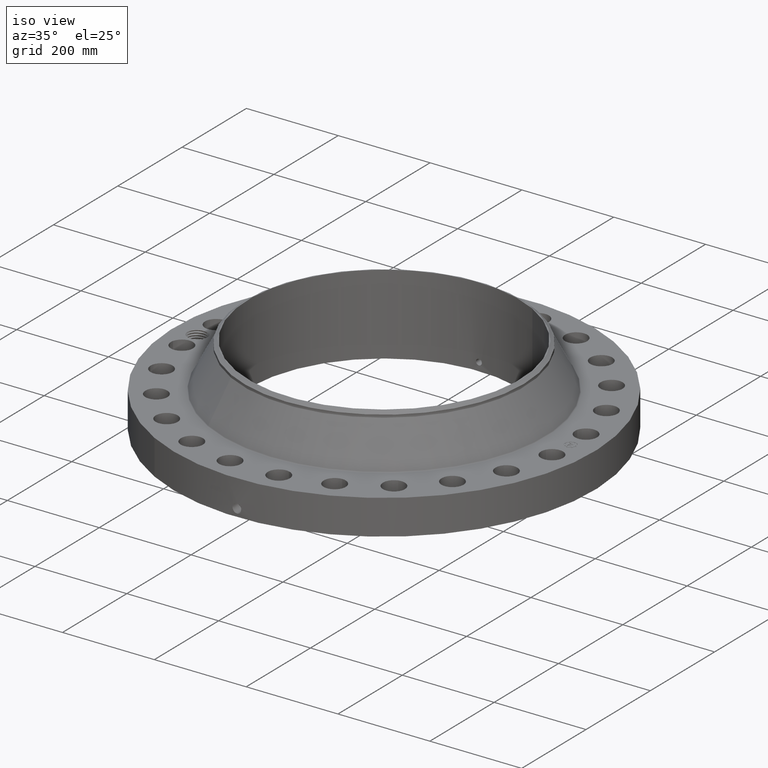
[diagram: clean part render]
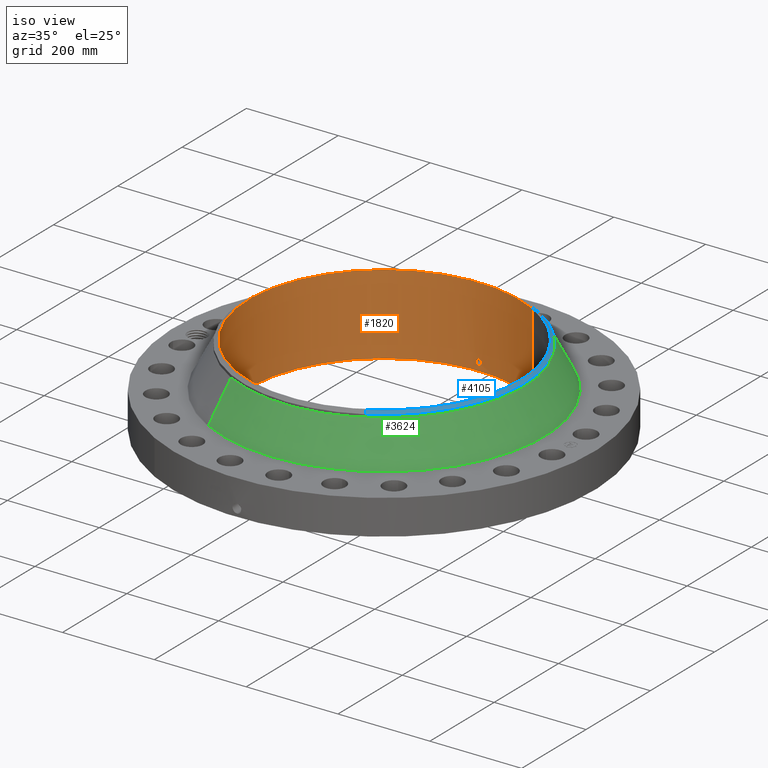
[diagram: same view with three faces highlighted in distinct colors, each labeled with its STEP entity id]
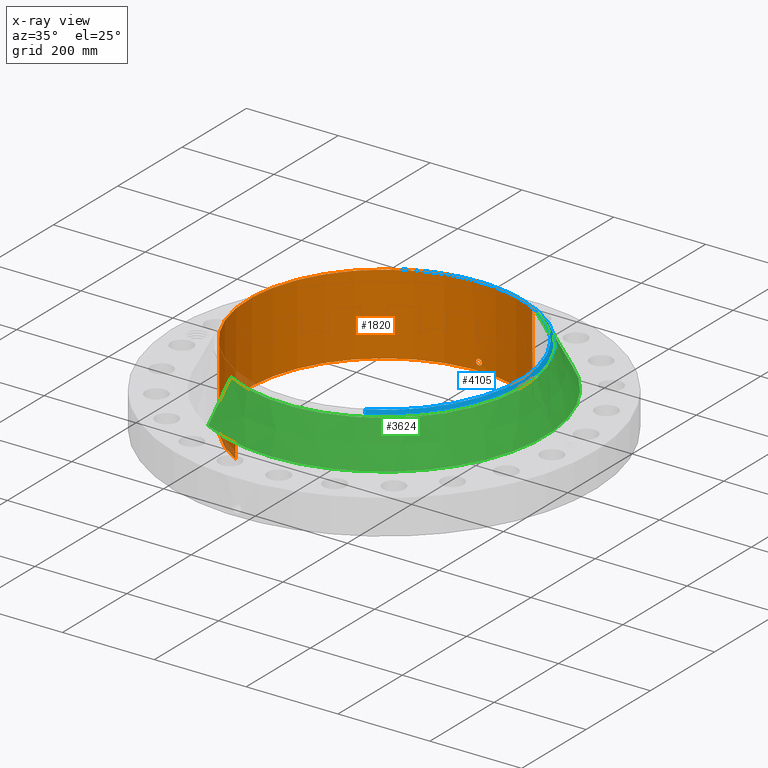
[diagram: x-ray of the same camera — body ghosted, the three highlighted faces saturated]
A machine part, iso view with three faces highlighted in distinct colors.
The next image is the same camera in x-ray (body ghosted, the three faces saturated) — at least one of them is partly hidden behind the body in this view.
Their STEP definitions:

[orange] entity #1820 — the highlighted cylindrical surface (partial cylindrical patch) has radius 295.275 mm, axis along (0, 0, -1).
#257=AXIS2_PLACEMENT_3D('Circle Axis2P3D',#255,#256,$) ;
#1697=AXIS2_PLACEMENT_3D('Cylinder Axis2P3D',#1694,#1695,#1696) ;
#1769=AXIS2_PLACEMENT_3D('Circle Axis2P3D',#1767,#1768,$) ;
#250=CARTESIAN_POINT('Vertex',(5.5733218863,10.201897282,0.250000000001)) ;
#252=CARTESIAN_POINT('Vertex',(-5.5733218863,-10.201897282,0.250000000001)) ;
#255=CARTESIAN_POINT('Axis2P3D Location',(0.,0.,0.250000000001)) ;
#1694=CARTESIAN_POINT('Axis2P3D Location',(0.,0.,3.69000000001)) ;
#1703=CARTESIAN_POINT('Vertex',(5.5733218863,10.201897282,7.13000000003)) ;
#1705=CARTESIAN_POINT('Vertex',(-5.5733218863,-10.201897282,7.13000000003)) ;
#1708=CARTESIAN_POINT('Line Origine',(5.5733218863,10.201897282,3.69000000001)) ;
#1713=CARTESIAN_POINT('Line Origine',(-5.5733218863,-10.201897282,3.69000000001)) ;
#1767=CARTESIAN_POINT('Axis2P3D Location',(0.,0.,7.13000000003)) ;
#1779=CARTESIAN_POINT('Control Point',(0.219395640473,11.6229295169,1.05985638466)) ;
#1780=CARTESIAN_POINT('Control Point',(0.194442690196,11.6234005314,1.10553245376)) ;
#1781=CARTESIAN_POINT('Control Point',(0.157603809253,11.6240289186,1.14471350057)) ;
#1782=CARTESIAN_POINT('Control Point',(0.111104237784,11.624640089,1.17324467076)) ;
#1783=CARTESIAN_POINT('Control Point',(0.0336681245459,11.6251263373,1.19588334378)) ;
#1784=CARTESIAN_POINT('Control Point',(-0.0446771705862,11.6249582664,1.18805553725)) ;
#1785=CARTESIAN_POINT('Control Point',(-0.0703086500572,11.624827795,1.18204182907)) ;
#1786=CARTESIAN_POINT('Control Point',(-0.143966920713,11.6242512714,1.15420586263)) ;
#1787=CARTESIAN_POINT('Control Point',(-0.203255914342,11.6233103135,1.09948409915)) ;
#1788=CARTESIAN_POINT('Control Point',(-0.232218698508,11.6226932693,1.05323980758)) ;
#1789=CARTESIAN_POINT('Control Point',(-0.255842048639,11.6221861779,0.975095075018)) ;
#1790=CARTESIAN_POINT('Control Point',(-0.248280051574,11.622348369,0.895735509097)) ;
#1791=CARTESIAN_POINT('Control Point',(-0.242046339845,11.6224840063,0.869177390038)) ;
#1792=CARTESIAN_POINT('Control Point',(-0.232313797056,11.6226856724,0.843790142365)) ;
#1793=CARTESIAN_POINT('Control Point',(-0.219395640473,11.6229295169,0.820143615352)) ;
#1794=CARTESIAN_POINT('Vertex',(0.219395640473,11.6229295169,1.05985638466)) ;
#1796=CARTESIAN_POINT('Vertex',(-0.219395640473,11.6229295169,0.820143615352)) ;
#1800=CARTESIAN_POINT('Control Point',(-0.219395640473,11.6229295169,0.820143615352)) ;
#1801=CARTESIAN_POINT('Control Point',(-0.194442690218,11.6234005314,0.774467546289)) ;
#1802=CARTESIAN_POINT('Control Point',(-0.157603809317,11.6240289186,0.735286499509)) ;
#1803=CARTESIAN_POINT('Control Point',(-0.111104237696,11.624640089,0.706755329219)) ;
#1804=CARTESIAN_POINT('Control Point',(-0.0336681244832,11.6251263373,0.684116656223)) ;
#1805=CARTESIAN_POINT('Control Point',(0.0446771706234,11.6249582664,0.69194446276)) ;
#1806=CARTESIAN_POINT('Control Point',(0.0703086500175,11.624827795,0.697958170925)) ;
#1807=CARTESIAN_POINT('Control Point',(0.143966920665,11.6242512714,0.725794137349)) ;
#1808=CARTESIAN_POINT('Control Point',(0.203255914293,11.6233103135,0.780515900807)) ;
#1809=CARTESIAN_POINT('Control Point',(0.232218698527,11.6226932693,0.826760192493)) ;
#1810=CARTESIAN_POINT('Control Point',(0.25584204862,11.6221861779,0.904904924969)) ;
#1811=CARTESIAN_POINT('Control Point',(0.248280051584,11.622348369,0.984264490806)) ;
#1812=CARTESIAN_POINT('Control Point',(0.242046339809,11.6224840063,1.01082261007)) ;
#1813=CARTESIAN_POINT('Control Point',(0.232313797032,11.6226856724,1.03620985769)) ;
#1814=CARTESIAN_POINT('Control Point',(0.219395640473,11.6229295169,1.05985638466)) ;
#256=DIRECTION('Axis2P3D Direction',(0.,0.,-0.0393700787402)) ;
#1695=DIRECTION('Axis2P3D Direction',(0.,0.,-0.0393700787402)) ;
#1696=DIRECTION('Axis2P3D XDirection',(-0.0188750212049,-0.0345504945626,0.)) ;
#1709=DIRECTION('Vector Direction',(0.,0.,-0.0393700787402)) ;
#1714=DIRECTION('Vector Direction',(0.,0.,-0.0393700787402)) ;
#1768=DIRECTION('Axis2P3D Direction',(0.,0.,-0.0393700787402)) ;
#1710=VECTOR('Line Direction',#1709,0.0393700787402) ;
#1715=VECTOR('Line Direction',#1714,0.0393700787402) ;
#1773=ORIENTED_EDGE('',*,*,#1771,.F.) ;
#1774=ORIENTED_EDGE('',*,*,#1717,.T.) ;
#1775=ORIENTED_EDGE('',*,*,#259,.T.) ;
#1776=ORIENTED_EDGE('',*,*,#1712,.F.) ;
#1817=ORIENTED_EDGE('',*,*,#1798,.F.) ;
#1818=ORIENTED_EDGE('',*,*,#1815,.F.) ;
#1819=FACE_BOUND('',#1816,.T.) ;
#1820=ADVANCED_FACE('PartBody',(#1777,#1819),#1698,.F.) ;
#1778=B_SPLINE_CURVE_WITH_KNOTS('',5,(#1779,#1780,#1781,#1782,#1783,#1784,#1785,#1786,#1787,#1788,#1789,#1790,#1791,#1792,#1793),.UNSPECIFIED.,.F.,.U.,(6,3,3,3,6),(0.,9.34839895315,14.0230211676,23.3730687647,28.2127402318),.UNSPECIFIED.) ;
#1799=B_SPLINE_CURVE_WITH_KNOTS('',5,(#1800,#1801,#1802,#1803,#1804,#1805,#1806,#1807,#1808,#1809,#1810,#1811,#1812,#1813,#1814),.UNSPECIFIED.,.F.,.U.,(6,3,3,3,6),(0.,9.34839894496,14.023021163,23.3730687543,28.2127402123),.UNSPECIFIED.) ;
#258=CIRCLE('generated circle',#257,11.625) ;
#1770=CIRCLE('generated circle',#1769,11.625) ;
#1698=CYLINDRICAL_SURFACE('generated cylinder',#1697,11.625) ;
#259=EDGE_CURVE('',#253,#251,#258,.T.) ;
#1712=EDGE_CURVE('',#1704,#251,#1711,.T.) ;
#1717=EDGE_CURVE('',#1706,#253,#1716,.T.) ;
#1771=EDGE_CURVE('',#1706,#1704,#1770,.T.) ;
#1798=EDGE_CURVE('',#1795,#1797,#1778,.T.) ;
#1815=EDGE_CURVE('',#1797,#1795,#1799,.T.) ;
#1772=EDGE_LOOP('',(#1773,#1774,#1775,#1776)) ;
#1816=EDGE_LOOP('',(#1817,#1818)) ;
#1777=FACE_OUTER_BOUND('',#1772,.T.) ;
#1711=LINE('Line',#1708,#1710) ;
#1716=LINE('Line',#1713,#1715) ;
#251=VERTEX_POINT('',#250) ;
#253=VERTEX_POINT('',#252) ;
#1704=VERTEX_POINT('',#1703) ;
#1706=VERTEX_POINT('',#1705) ;
#1795=VERTEX_POINT('',#1794) ;
#1797=VERTEX_POINT('',#1796) ;

[blue] entity #4105 — the highlighted conical surface has half-angle 52.5 deg.
#3208=AXIS2_PLACEMENT_3D('Circle Axis2P3D',#3206,#3207,$) ;
#4050=AXIS2_PLACEMENT_3D('Cone Axis2P3D',#4047,#4048,#4049) ;
#4088=AXIS2_PLACEMENT_3D('Circle Axis2P3D',#4086,#4087,$) ;
#4095=AXIS2_PLACEMENT_3D('Circle Axis2P3D',#4093,#4094,$) ;
#3206=CARTESIAN_POINT('Axis2P3D Location',(0.,0.,7.13000000003)) ;
#3210=CARTESIAN_POINT('Vertex',(5.61107192871,-10.2709982711,7.13000000003)) ;
#3212=CARTESIAN_POINT('Vertex',(-5.61107192871,10.2709982711,7.13000000003)) ;
#4047=CARTESIAN_POINT('Axis2P3D Location',(0.,0.,7.13000000003)) ;
#4052=CARTESIAN_POINT('Line Origine',(5.68208919599,-10.4009945069,7.01633591372)) ;
#4056=CARTESIAN_POINT('Vertex',(5.75310646327,-10.5309907427,6.90267182741)) ;
#4059=CARTESIAN_POINT('Line Origine',(-5.68208919599,10.4009945069,7.01633591372)) ;
#4063=CARTESIAN_POINT('Vertex',(-5.75310646327,10.5309907427,6.90267182741)) ;
#4086=CARTESIAN_POINT('Axis2P3D Location',(0.,0.,6.90267182741)) ;
#4090=CARTESIAN_POINT('Vertex',(5.75310646327,10.5309907427,6.90267182741)) ;
#4093=CARTESIAN_POINT('Axis2P3D Location',(0.,0.,6.90267182741)) ;
#3207=DIRECTION('Axis2P3D Direction',(0.,0.,-0.0393700787402)) ;
#4048=DIRECTION('Axis2P3D Direction',(-0.,-0.,-0.0393700787402)) ;
#4049=DIRECTION('Axis2P3D XDirection',(-0.0188750212049,0.0345504945626,0.)) ;
#4053=DIRECTION('Vector Direction',(0.014974561121,-0.02741075027,-0.023966985394)) ;
#4060=DIRECTION('Vector Direction',(-0.014974561121,0.02741075027,-0.023966985394)) ;
#4087=DIRECTION('Axis2P3D Direction',(0.,0.,-0.0393700787402)) ;
#4094=DIRECTION('Axis2P3D Direction',(0.,0.,-0.0393700787402)) ;
#4054=VECTOR('Line Direction',#4053,0.0393700787402) ;
#4061=VECTOR('Line Direction',#4060,0.0393700787402) ;
#4099=ORIENTED_EDGE('',*,*,#4065,.F.) ;
#4100=ORIENTED_EDGE('',*,*,#3214,.F.) ;
#4101=ORIENTED_EDGE('',*,*,#4058,.T.) ;
#4102=ORIENTED_EDGE('',*,*,#4092,.T.) ;
#4103=ORIENTED_EDGE('',*,*,#4097,.F.) ;
#4105=ADVANCED_FACE('PartBody',(#4104),#4051,.T.) ;
#3209=CIRCLE('generated circle',#3208,11.7037401575) ;
#4089=CIRCLE('generated circle',#4088,12.) ;
#4096=CIRCLE('generated circle',#4095,12.) ;
#4051=CONICAL_SURFACE('Cone',#4050,11.7037401575,0.916297857297) ;
#3214=EDGE_CURVE('',#3211,#3213,#3209,.F.) ;
#4058=EDGE_CURVE('',#3211,#4057,#4055,.T.) ;
#4065=EDGE_CURVE('',#3213,#4064,#4062,.T.) ;
#4092=EDGE_CURVE('',#4057,#4091,#4089,.F.) ;
#4097=EDGE_CURVE('',#4064,#4091,#4096,.T.) ;
#4098=EDGE_LOOP('',(#4099,#4100,#4101,#4102,#4103)) ;
#4104=FACE_OUTER_BOUND('',#4098,.T.) ;
#4055=LINE('Line',#4052,#4054) ;
#4062=LINE('Line',#4059,#4061) ;
#3211=VERTEX_POINT('',#3210) ;
#3213=VERTEX_POINT('',#3212) ;
#4057=VERTEX_POINT('',#4056) ;
#4064=VERTEX_POINT('',#4063) ;
#4091=VERTEX_POINT('',#4090) ;

[green] entity #3624 — the highlighted conical surface has half-angle 27.914 deg.
#2862=AXIS2_PLACEMENT_3D('Circle Axis2P3D',#2860,#2861,$) ;
#3597=AXIS2_PLACEMENT_3D('Cone Axis2P3D',#3594,#3595,#3596) ;
#3608=AXIS2_PLACEMENT_3D('Circle Axis2P3D',#3606,#3607,$) ;
#2857=CARTESIAN_POINT('Vertex',(6.60465619555,12.0897420721,3.31382219169)) ;
#2860=CARTESIAN_POINT('Axis2P3D Location',(0.,0.,3.31382219169)) ;
#2864=CARTESIAN_POINT('Vertex',(-6.60465619555,-12.0897420721,3.31382219169)) ;
#3594=CARTESIAN_POINT('Axis2P3D Location',(0.,0.,6.66645135497)) ;
#3599=CARTESIAN_POINT('Line Origine',(6.17888132941,11.3103664074,4.99013677333)) ;
#3603=CARTESIAN_POINT('Vertex',(5.75310646327,10.5309907427,6.66645135497)) ;
#3606=CARTESIAN_POINT('Axis2P3D Location',(0.,0.,6.66645135497)) ;
#3610=CARTESIAN_POINT('Vertex',(-5.75310646327,-10.5309907427,6.66645135497)) ;
#3613=CARTESIAN_POINT('Line Origine',(-6.17888132941,-11.3103664074,4.99013677333)) ;
#2861=DIRECTION('Axis2P3D Direction',(0.,0.,-0.0393700787402)) ;
#3595=DIRECTION('Axis2P3D Direction',(0.,0.,-0.0393700787402)) ;
#3596=DIRECTION('Axis2P3D XDirection',(-0.0188750212049,-0.0345504945626,0.)) ;
#3600=DIRECTION('Vector Direction',(0.00883631102716,0.0161747588404,-0.0347893645227)) ;
#3607=DIRECTION('Axis2P3D Direction',(0.,0.,-0.0393700787402)) ;
#3614=DIRECTION('Vector Direction',(-0.00883631102716,-0.0161747588404,-0.0347893645227)) ;
#3601=VECTOR('Line Direction',#3600,0.0393700787402) ;
#3615=VECTOR('Line Direction',#3614,0.0393700787402) ;
#3619=ORIENTED_EDGE('',*,*,#2866,.F.) ;
#3620=ORIENTED_EDGE('',*,*,#3605,.T.) ;
#3621=ORIENTED_EDGE('',*,*,#3612,.T.) ;
#3622=ORIENTED_EDGE('',*,*,#3617,.F.) ;
#3624=ADVANCED_FACE('PartBody',(#3623),#3598,.T.) ;
#2863=CIRCLE('generated circle',#2862,13.7761876741) ;
#3609=CIRCLE('generated circle',#3608,12.) ;
#3598=CONICAL_SURFACE('Cone',#3597,12.,0.487194215022) ;
#2866=EDGE_CURVE('',#2858,#2865,#2863,.T.) ;
#3605=EDGE_CURVE('',#2858,#3604,#3602,.F.) ;
#3612=EDGE_CURVE('',#3604,#3611,#3609,.T.) ;
#3617=EDGE_CURVE('',#2865,#3611,#3616,.F.) ;
#3618=EDGE_LOOP('',(#3619,#3620,#3621,#3622)) ;
#3623=FACE_OUTER_BOUND('',#3618,.T.) ;
#3602=LINE('Line',#3599,#3601) ;
#3616=LINE('Line',#3613,#3615) ;
#2858=VERTEX_POINT('',#2857) ;
#2865=VERTEX_POINT('',#2864) ;
#3604=VERTEX_POINT('',#3603) ;
#3611=VERTEX_POINT('',#3610) ;